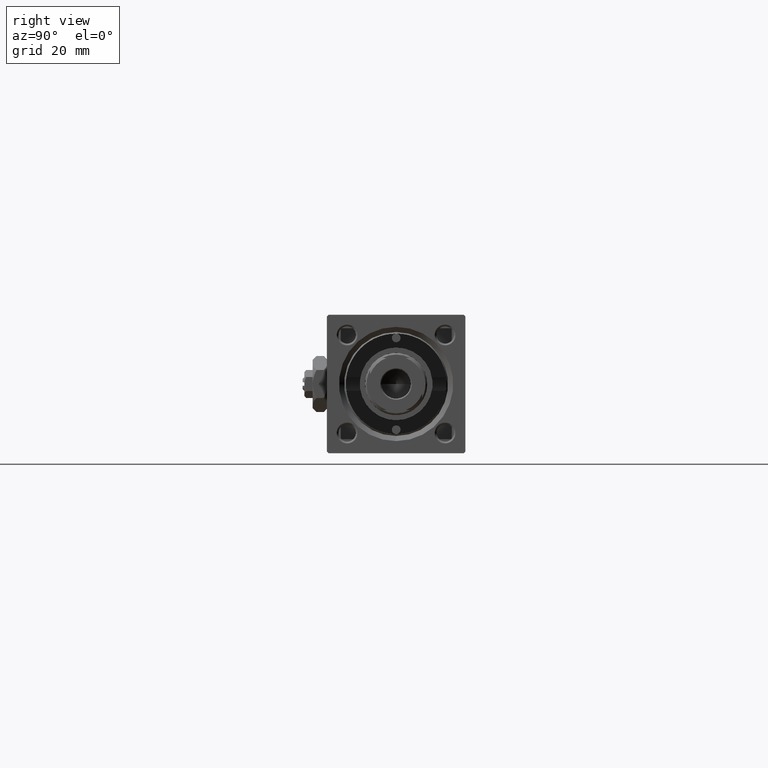
[diagram: clean part render]
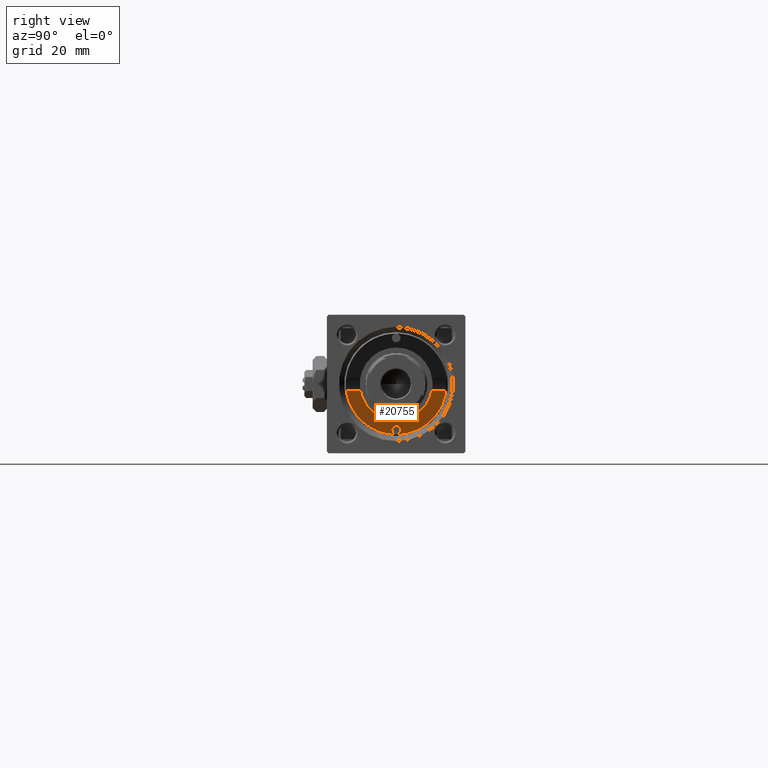
[diagram: same view with one face highlighted and labeled with its STEP entity id]
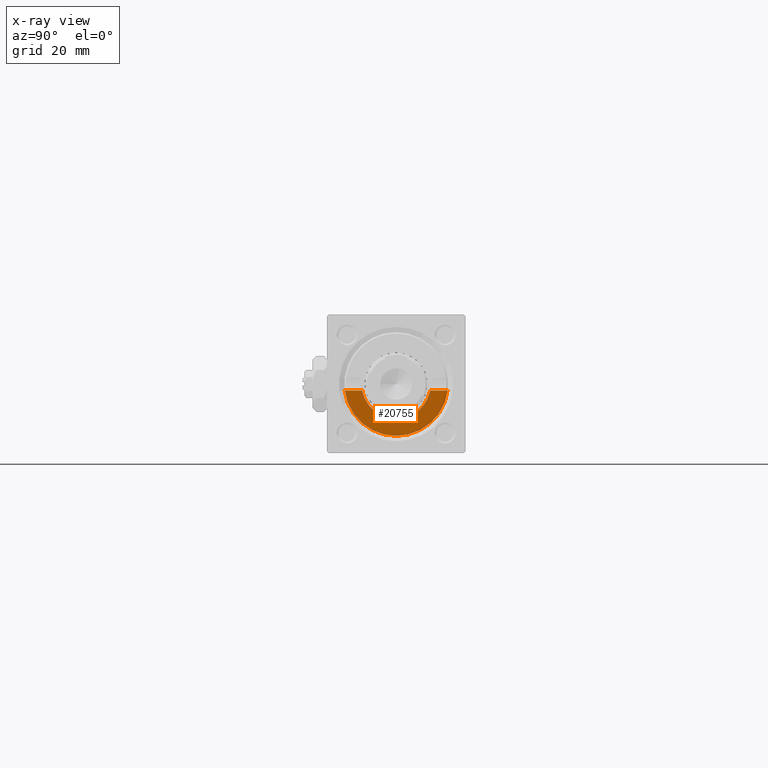
[diagram: x-ray of the same camera — body ghosted, the highlighted face saturated]
A machine part, right view. The second image highlights one B-rep face of the part: STEP entity #20755.
The next image is the same camera in x-ray: the body ghosted, the highlighted face saturated — about 18% of this face is hidden behind the body in this view.
In plain terms, the highlighted planar face has unit normal (1, 0, 0).
Its self-contained STEP definition (entity closure, byte-faithful):
#1088 = EDGE_CURVE ( 'NONE', #47493, #50064, #38577, .T. ) ;
#2182 = CARTESIAN_POINT ( 'NONE',  ( 150.2999999999999829, 0.000000000000000000, 0.000000000000000000 ) ) ;
#4941 = ORIENTED_EDGE ( 'NONE', *, *, #28401, .F. ) ;
#5867 = DIRECTION ( 'NONE',  ( 1.000000000000000000, 0.000000000000000000, 0.000000000000000000 ) ) ;
#6534 = ORIENTED_EDGE ( 'NONE', *, *, #20870, .T. ) ;
#7148 = EDGE_CURVE ( 'NONE', #50064, #46019, #46911, .T. ) ;
#7333 = AXIS2_PLACEMENT_3D ( 'NONE', #41873, #22316, #44220 ) ;
#10105 = VECTOR ( 'NONE', #50613, 1000.000000000000000 ) ;
#10363 = DIRECTION ( 'NONE',  ( 0.000000000000000000, 0.000000000000000000, -1.000000000000000000 ) ) ;
#12609 = AXIS2_PLACEMENT_3D ( 'NONE', #41101, #49033, #25263 ) ;
#17172 = CARTESIAN_POINT ( 'NONE',  ( 150.2999999999999829, 0.000000000000000000, 0.000000000000000000 ) ) ;
#17296 = CARTESIAN_POINT ( 'NONE',  ( 150.2999999999999829, -9.818024241159692522, -1.899052395275222294 ) ) ;
#18104 = CIRCLE ( 'NONE', #47649, 9.999999999999998224 ) ;
#20271 = ORIENTED_EDGE ( 'NONE', *, *, #7148, .F. ) ;
#20755 = ADVANCED_FACE ( 'NONE', ( #27257 ), #46825, .T. ) ;
#20870 = EDGE_CURVE ( 'NONE', #29860, #33638, #37267, .T. ) ;
#21976 = CARTESIAN_POINT ( 'NONE',  ( 150.2999999999999829, 0.000000000000000000, 0.000000000000000000 ) ) ;
#22316 = DIRECTION ( 'NONE',  ( 1.000000000000000000, 0.000000000000000000, 0.000000000000000000 ) ) ;
#22370 = VECTOR ( 'NONE', #30883, 1000.000000000000000 ) ;
#22439 = LINE ( 'NONE', #39338, #22370 ) ;
#23514 = CARTESIAN_POINT ( 'NONE',  ( 150.2999999999999829, 0.000000000000000000, -9.999999999999998224 ) ) ;
#25263 = DIRECTION ( 'NONE',  ( 0.000000000000000000, 0.000000000000000000, -1.000000000000000000 ) ) ;
#26357 = CARTESIAN_POINT ( 'NONE',  ( 150.2999999999999829, 14.87930105885351928, -1.899052395275221405 ) ) ;
#27219 = EDGE_CURVE ( 'NONE', #28872, #47493, #18104, .T. ) ;
#27257 = FACE_OUTER_BOUND ( 'NONE', #30611, .T. ) ;
#28401 = EDGE_CURVE ( 'NONE', #29860, #28872, #22439, .T. ) ;
#28872 = VERTEX_POINT ( 'NONE', #17296 ) ;
#29860 = VERTEX_POINT ( 'NONE', #35507 ) ;
#30611 = EDGE_LOOP ( 'NONE', ( #4941, #6534, #47753, #20271, #30853, #30843 ) ) ;
#30843 = ORIENTED_EDGE ( 'NONE', *, *, #27219, .F. ) ;
#30853 = ORIENTED_EDGE ( 'NONE', *, *, #1088, .F. ) ;
#30883 = DIRECTION ( 'NONE',  ( 0.000000000000000000, 1.000000000000000000, 8.673617379884037937E-17 ) ) ;
#30958 = DIRECTION ( 'NONE',  ( 1.000000000000000000, 0.000000000000000000, 0.000000000000000000 ) ) ;
#33638 = VERTEX_POINT ( 'NONE', #34531 ) ;
#34531 = CARTESIAN_POINT ( 'NONE',  ( 150.2999999999999829, 0.000000000000000000, -15.00000000000000000 ) ) ;
#35507 = CARTESIAN_POINT ( 'NONE',  ( 150.2999999999999829, -14.87930105885351750, -1.899052395275222072 ) ) ;
#36276 = CIRCLE ( 'NONE', #12609, 15.00000000000000000 ) ;
#37267 = CIRCLE ( 'NONE', #48244, 15.00000000000000000 ) ;
#37532 = DIRECTION ( 'NONE',  ( 0.000000000000000000, 0.000000000000000000, -1.000000000000000000 ) ) ;
#38577 = CIRCLE ( 'NONE', #7333, 9.999999999999998224 ) ;
#39338 = CARTESIAN_POINT ( 'NONE',  ( 150.2999999999999829, 20.00100000000008293, -1.899052395275219407 ) ) ;
#41101 = CARTESIAN_POINT ( 'NONE',  ( 150.2999999999999829, 0.000000000000000000, 0.000000000000000000 ) ) ;
#41873 = CARTESIAN_POINT ( 'NONE',  ( 150.2999999999999829, 0.000000000000000000, 0.000000000000000000 ) ) ;
#42363 = AXIS2_PLACEMENT_3D ( 'NONE', #2182, #30958, #10363 ) ;
#44220 = DIRECTION ( 'NONE',  ( 0.000000000000000000, 0.000000000000000000, -1.000000000000000000 ) ) ;
#44928 = DIRECTION ( 'NONE',  ( 1.000000000000000000, 0.000000000000000000, 0.000000000000000000 ) ) ;
#46019 = VERTEX_POINT ( 'NONE', #26357 ) ;
#46825 = PLANE ( 'NONE',  #42363 ) ;
#46911 = LINE ( 'NONE', #47428, #10105 ) ;
#47047 = EDGE_CURVE ( 'NONE', #33638, #46019, #36276, .T. ) ;
#47428 = CARTESIAN_POINT ( 'NONE',  ( 150.2999999999999829, -18.61105048082995594, -1.899052395275221405 ) ) ;
#47493 = VERTEX_POINT ( 'NONE', #23514 ) ;
#47649 = AXIS2_PLACEMENT_3D ( 'NONE', #21976, #5867, #48938 ) ;
#47753 = ORIENTED_EDGE ( 'NONE', *, *, #47047, .T. ) ;
#48244 = AXIS2_PLACEMENT_3D ( 'NONE', #17172, #44928, #37532 ) ;
#48938 = DIRECTION ( 'NONE',  ( 0.000000000000000000, 0.000000000000000000, -1.000000000000000000 ) ) ;
#49033 = DIRECTION ( 'NONE',  ( 1.000000000000000000, 0.000000000000000000, 0.000000000000000000 ) ) ;
#50064 = VERTEX_POINT ( 'NONE', #51408 ) ;
#50613 = DIRECTION ( 'NONE',  ( -0.000000000000000000, 1.000000000000000000, -0.000000000000000000 ) ) ;
#51408 = CARTESIAN_POINT ( 'NONE',  ( 150.2999999999999829, 9.818024241159694299, -1.899052395275221405 ) ) ;